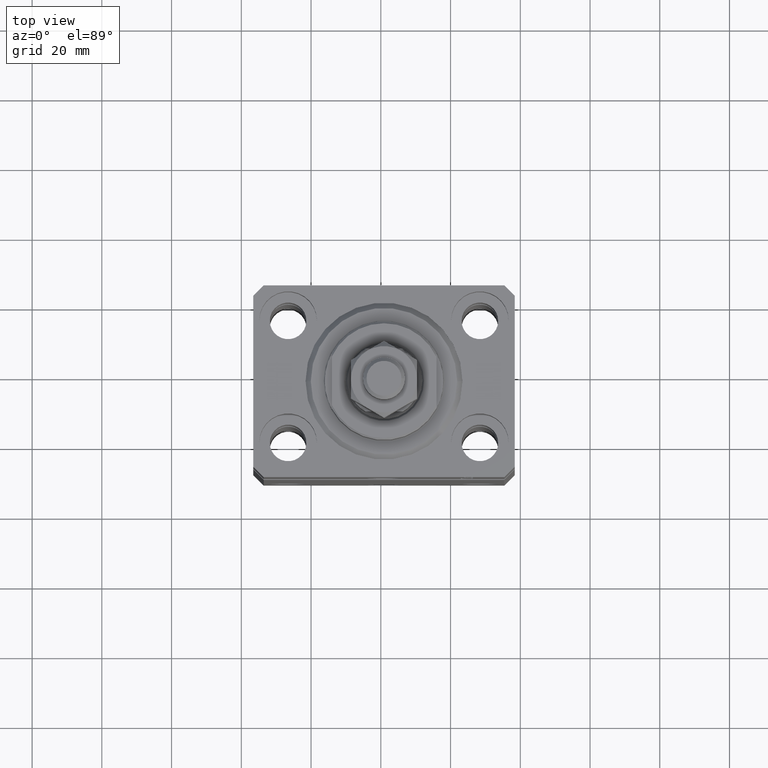
[diagram: clean part render]
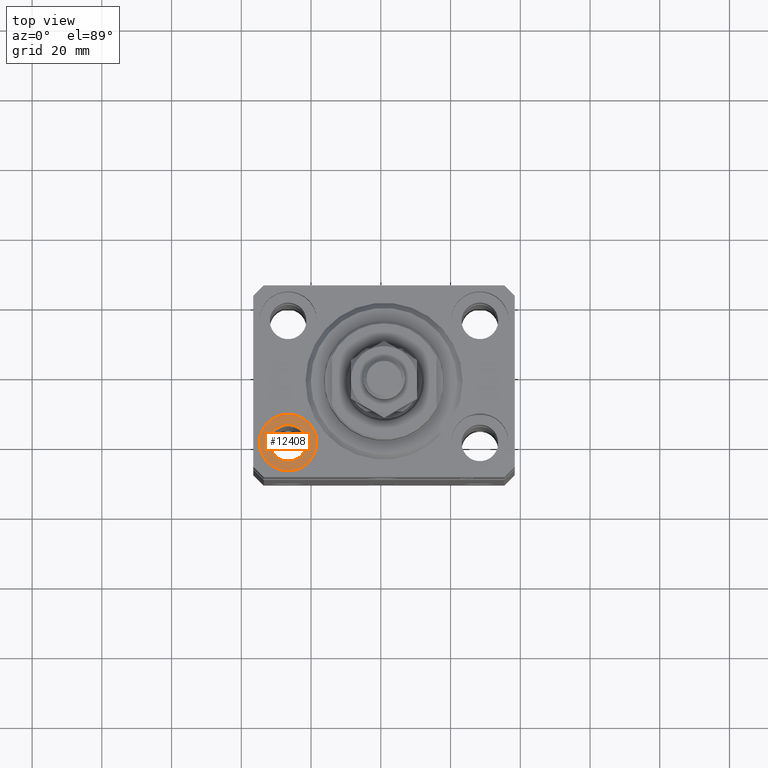
[diagram: same view with one face highlighted and labeled with its STEP entity id]
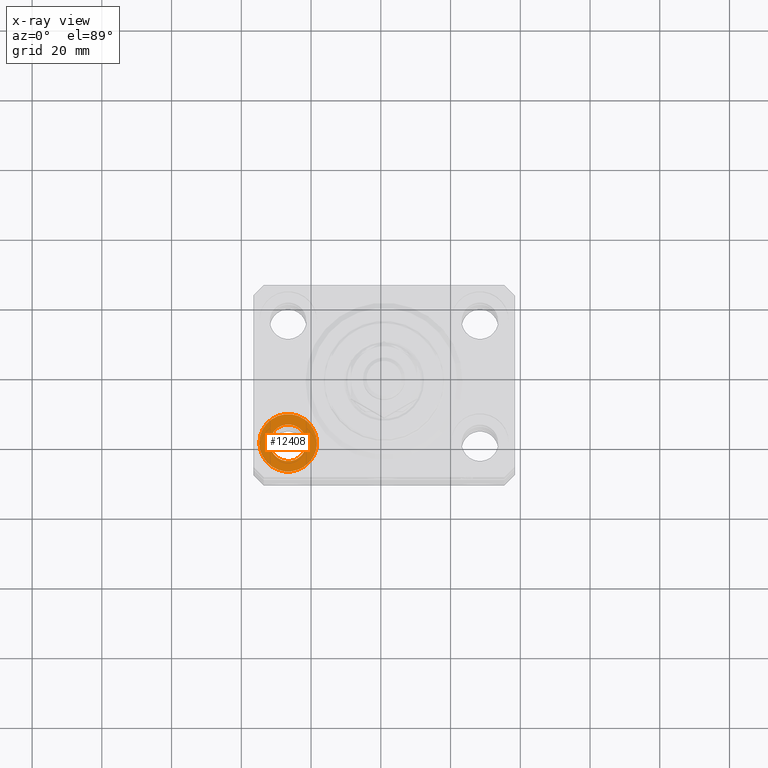
[diagram: x-ray of the same camera — body ghosted, the highlighted face saturated]
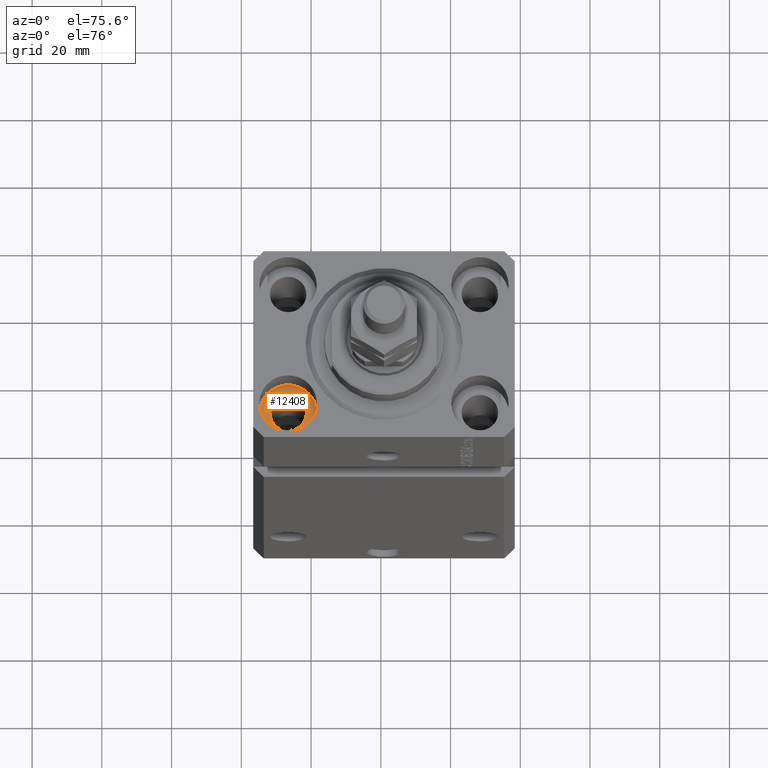
[diagram: same view with one face highlighted and labeled with its STEP entity id]
A machine part, top view. The second image highlights one B-rep face of the part: STEP entity #12408.
The next image is the same camera in x-ray: the body ghosted, the highlighted face saturated — about 0% of this face is hidden behind the body in this view.
A second angle (auxiliary view) of the same face is appended — the face is thin or edge-on in the first view.
In plain terms, the highlighted planar face has unit normal (0, 0, 1).
Its self-contained STEP definition (entity closure, byte-faithful):
#110 = DIRECTION ( 'NONE',  ( 1.000000000000000000, 0.000000000000000000, 0.000000000000000000 ) ) ;
#149 = DIRECTION ( 'NONE',  ( 1.000000000000000000, 0.000000000000000000, 0.000000000000000000 ) ) ;
#1588 = CIRCLE ( 'NONE', #23918, 8.250000000000000000 ) ;
#2266 = DIRECTION ( 'NONE',  ( 1.000000000000000000, 0.000000000000000000, -0.000000000000000000 ) ) ;
#2617 = DIRECTION ( 'NONE',  ( 1.000000000000000000, 0.000000000000000000, 0.000000000000000000 ) ) ;
#7607 = CARTESIAN_POINT ( 'NONE',  ( -27.50000000000000355, -17.50000000000000000, -11.00000000000000000 ) ) ;
#9028 = PLANE ( 'NONE',  #40766 ) ;
#10337 = DIRECTION ( 'NONE',  ( 0.000000000000000000, 0.000000000000000000, 1.000000000000000000 ) ) ;
#11058 = DIRECTION ( 'NONE',  ( 0.000000000000000000, 0.000000000000000000, 1.000000000000000000 ) ) ;
#11409 = EDGE_LOOP ( 'NONE', ( #35227, #11716 ) ) ;
#11716 = ORIENTED_EDGE ( 'NONE', *, *, #39278, .F. ) ;
#12289 = FACE_BOUND ( 'NONE', #11409, .T. ) ;
#12408 = ADVANCED_FACE ( 'NONE', ( #12289, #37284 ), #9028, .T. ) ;
#13552 = DIRECTION ( 'NONE',  ( 0.000000000000000000, 0.000000000000000000, 1.000000000000000000 ) ) ;
#14145 = DIRECTION ( 'NONE',  ( 0.000000000000000000, 0.000000000000000000, 1.000000000000000000 ) ) ;
#15493 = CARTESIAN_POINT ( 'NONE',  ( -32.75000000000000000, -17.50000000000000000, -11.00000000000000000 ) ) ;
#18235 = EDGE_CURVE ( 'NONE', #32887, #22132, #38585, .T. ) ;
#19202 = AXIS2_PLACEMENT_3D ( 'NONE', #32048, #10337, #21046 ) ;
#19973 = DIRECTION ( 'NONE',  ( 0.000000000000000000, 0.000000000000000000, 1.000000000000000000 ) ) ;
#21046 = DIRECTION ( 'NONE',  ( 1.000000000000000000, 0.000000000000000000, 0.000000000000000000 ) ) ;
#21066 = AXIS2_PLACEMENT_3D ( 'NONE', #7607, #14145, #149 ) ;
#22132 = VERTEX_POINT ( 'NONE', #43893 ) ;
#23324 = VERTEX_POINT ( 'NONE', #15493 ) ;
#23918 = AXIS2_PLACEMENT_3D ( 'NONE', #24049, #13552, #2617 ) ;
#24049 = CARTESIAN_POINT ( 'NONE',  ( -27.50000000000000355, -17.50000000000000000, -11.00000000000000000 ) ) ;
#25490 = ORIENTED_EDGE ( 'NONE', *, *, #27919, .T. ) ;
#27919 = EDGE_CURVE ( 'NONE', #22132, #32887, #1588, .T. ) ;
#30474 = EDGE_LOOP ( 'NONE', ( #37033, #25490 ) ) ;
#32048 = CARTESIAN_POINT ( 'NONE',  ( -27.50000000000000355, -17.50000000000000000, -11.00000000000000000 ) ) ;
#32887 = VERTEX_POINT ( 'NONE', #33621 ) ;
#33193 = CIRCLE ( 'NONE', #43628, 5.250000000000000888 ) ;
#33621 = CARTESIAN_POINT ( 'NONE',  ( -19.25000000000000355, -17.50000000000000000, -11.00000000000000000 ) ) ;
#34469 = CARTESIAN_POINT ( 'NONE',  ( -27.50000000000000355, -17.50000000000000000, -11.00000000000000000 ) ) ;
#35227 = ORIENTED_EDGE ( 'NONE', *, *, #43621, .F. ) ;
#35295 = CIRCLE ( 'NONE', #21066, 5.250000000000000888 ) ;
#37033 = ORIENTED_EDGE ( 'NONE', *, *, #18235, .T. ) ;
#37284 = FACE_OUTER_BOUND ( 'NONE', #30474, .T. ) ;
#38585 = CIRCLE ( 'NONE', #19202, 8.250000000000000000 ) ;
#39278 = EDGE_CURVE ( 'NONE', #23324, #44152, #35295, .T. ) ;
#40541 = CARTESIAN_POINT ( 'NONE',  ( -22.25000000000000355, -17.50000000000000000, -11.00000000000000000 ) ) ;
#40766 = AXIS2_PLACEMENT_3D ( 'NONE', #34469, #19973, #2266 ) ;
#42376 = CARTESIAN_POINT ( 'NONE',  ( -27.50000000000000355, -17.50000000000000000, -11.00000000000000000 ) ) ;
#43621 = EDGE_CURVE ( 'NONE', #44152, #23324, #33193, .T. ) ;
#43628 = AXIS2_PLACEMENT_3D ( 'NONE', #42376, #11058, #110 ) ;
#43893 = CARTESIAN_POINT ( 'NONE',  ( -35.75000000000000711, -17.50000000000000000, -11.00000000000000000 ) ) ;
#44152 = VERTEX_POINT ( 'NONE', #40541 ) ;